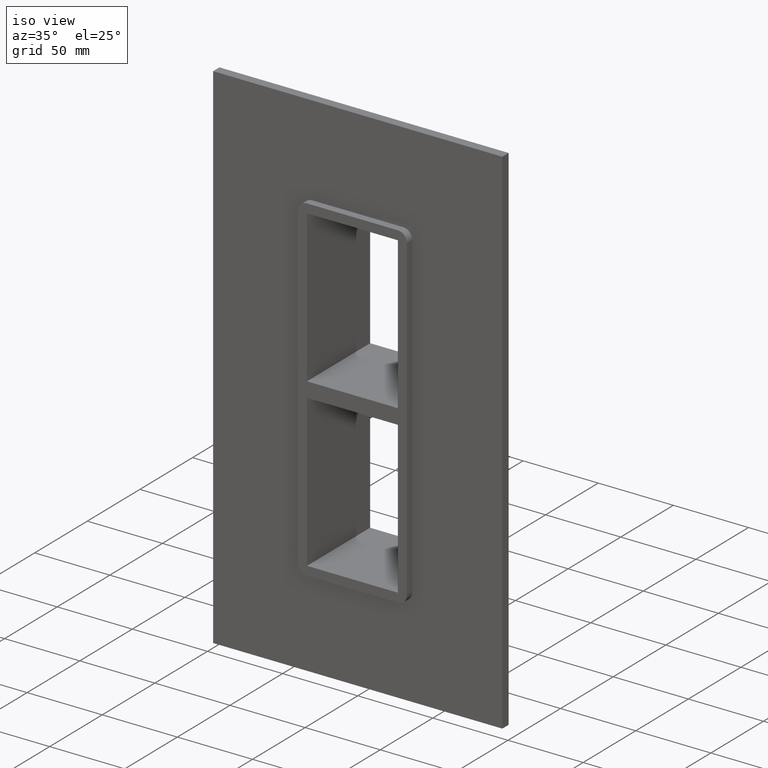
[diagram: clean part render]
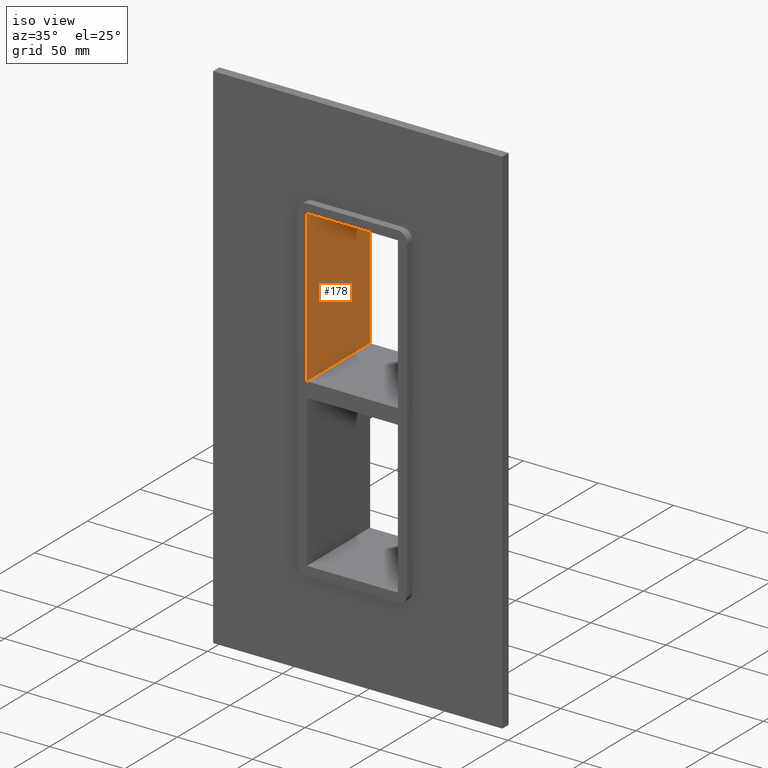
[diagram: same view with one face highlighted and labeled with its STEP entity id]
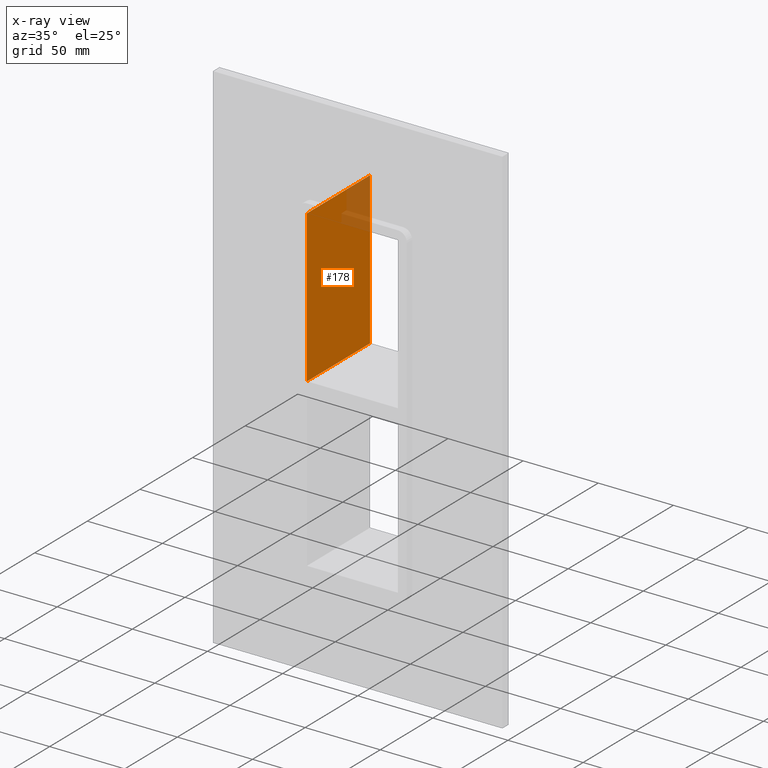
[diagram: x-ray of the same camera — body ghosted, the highlighted face saturated]
A machine part, iso view. The second image highlights one B-rep face of the part: STEP entity #178.
The next image is the same camera in x-ray: the body ghosted, the highlighted face saturated — about 11% of this face is hidden behind the body in this view.
In plain terms, the highlighted planar face has unit normal (-1, 0, 0).
Its self-contained STEP definition (entity closure, byte-faithful):
#113=CARTESIAN_POINT('',(-30.249999999999986,-5.0,5.000000000000018));
#114=VERTEX_POINT('',#113);
#131=CARTESIAN_POINT('',(-30.249999999999986,55.0,5.000000000000018));
#132=VERTEX_POINT('',#131);
#139=CARTESIAN_POINT('',(-30.249999999999986,-5.0,5.000000000000018));
#140=DIRECTION('',(0.0,1.0,0.0));
#141=VECTOR('',#140,60.0);
#142=LINE('',#139,#141);
#143=EDGE_CURVE('',#114,#132,#142,.T.);
#148=CARTESIAN_POINT('',(-30.249999999999986,0.0,-106.00000000000001));
#149=DIRECTION('',(-1.0,0.0,0.0));
#150=DIRECTION('',(0.0,0.0,1.0));
#151=AXIS2_PLACEMENT_3D('',#148,#149,#150);
#152=PLANE('',#151);
#153=ORIENTED_EDGE('',*,*,#143,.T.);
#154=CARTESIAN_POINT('',(-30.249999999999986,55.0,106.00000000000001));
#155=VERTEX_POINT('',#154);
#156=CARTESIAN_POINT('',(-30.249999999999986,55.0,106.00000000000003));
#157=DIRECTION('',(0.0,0.0,-1.0));
#158=VECTOR('',#157,101.00000000000001);
#159=LINE('',#156,#158);
#160=EDGE_CURVE('',#155,#132,#159,.T.);
#161=ORIENTED_EDGE('',*,*,#160,.F.);
#162=CARTESIAN_POINT('',(-30.249999999999986,-5.0,106.00000000000001));
#163=VERTEX_POINT('',#162);
#164=CARTESIAN_POINT('',(-30.249999999999986,-5.0,106.00000000000001));
#165=DIRECTION('',(0.0,1.0,0.0));
#166=VECTOR('',#165,60.0);
#167=LINE('',#164,#166);
#168=EDGE_CURVE('',#163,#155,#167,.T.);
#169=ORIENTED_EDGE('',*,*,#168,.F.);
#170=CARTESIAN_POINT('',(-30.249999999999986,-5.0,5.000000000000014));
#171=DIRECTION('',(0.0,0.0,1.0));
#172=VECTOR('',#171,101.00000000000001);
#173=LINE('',#170,#172);
#174=EDGE_CURVE('',#114,#163,#173,.T.);
#175=ORIENTED_EDGE('',*,*,#174,.F.);
#176=EDGE_LOOP('',(#153,#161,#169,#175));
#177=FACE_OUTER_BOUND('',#176,.T.);
#178=ADVANCED_FACE('',(#177),#152,.F.);